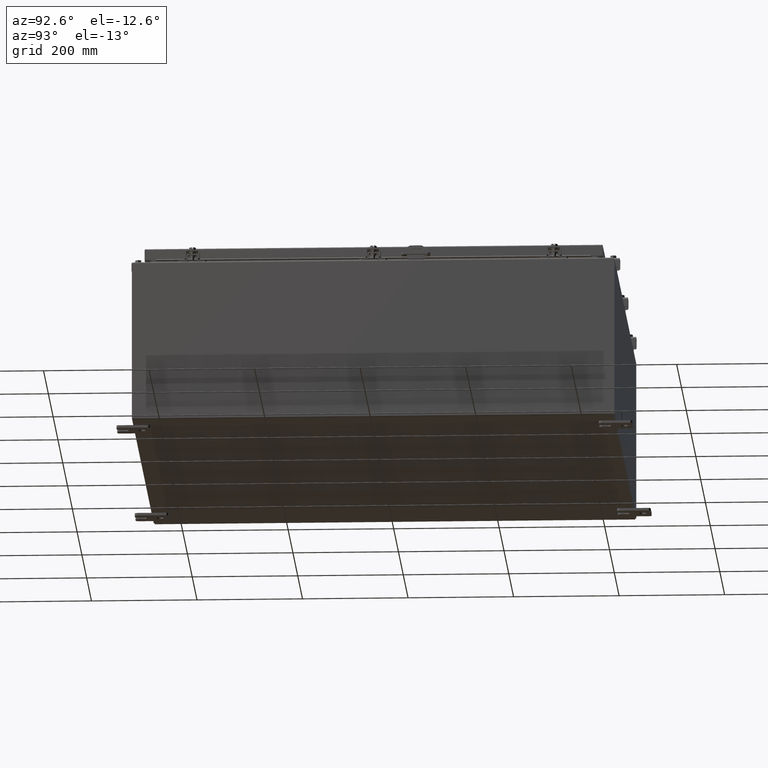
[diagram: clean part render]
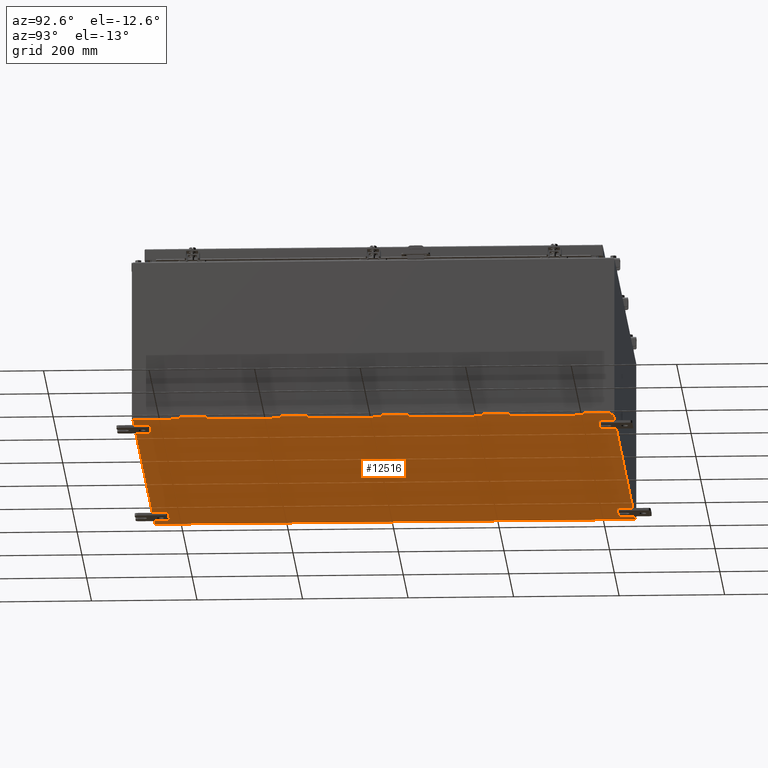
[diagram: same view with one face highlighted and labeled with its STEP entity id]
A machine part, auxiliary view. The second image highlights one B-rep face of the part: STEP entity #12516.
In plain terms, the highlighted planar face has unit normal (0, 0, -1).
Its self-contained STEP definition (entity closure, byte-faithful):
#723 = ORIENTED_EDGE ( 'NONE', *, *, #33934, .T. ) ;
#3571 = CARTESIAN_POINT ( 'NONE',  ( 17.91229999999999800, 17.92530000000000000, -0.07470000000000251400 ) ) ;
#5462 = EDGE_CURVE ( 'NONE', #15052, #46154, #5648, .T. ) ;
#5551 = FACE_OUTER_BOUND ( 'NONE', #27305, .T. ) ;
#5648 = LINE ( 'NONE', #37745, #13996 ) ;
#8200 = DIRECTION ( 'NONE',  ( -1.000000000000000000, -0.0000000000000000000, -0.0000000000000000000 ) ) ;
#8446 = VERTEX_POINT ( 'NONE', #3571 ) ;
#9478 = CARTESIAN_POINT ( 'NONE',  ( -17.91229999999999800, 17.92530000000000000, -0.07469999999999998900 ) ) ;
#10103 = EDGE_CURVE ( 'NONE', #8446, #32768, #34337, .T. ) ;
#12295 = ORIENTED_EDGE ( 'NONE', *, *, #31071, .T. ) ;
#12516 = ADVANCED_FACE ( 'NONE', ( #5551 ), #39843, .T. ) ;
#13996 = VECTOR ( 'NONE', #44903, 39.37007874015748100 ) ;
#14752 = CARTESIAN_POINT ( 'NONE',  ( 0.0000000000000000000, 0.0000000000000000000, -0.07469999999999998900 ) ) ;
#15052 = VERTEX_POINT ( 'NONE', #40501 ) ;
#16707 = CARTESIAN_POINT ( 'NONE',  ( 17.91229999999999800, 17.92530000000000000, -0.07470000000000251400 ) ) ;
#17434 = VECTOR ( 'NONE', #31029, 39.37007874015748100 ) ;
#20224 = DIRECTION ( 'NONE',  ( -0.0000000000000000000, 1.000000000000000000, -0.0000000000000000000 ) ) ;
#20538 = CARTESIAN_POINT ( 'NONE',  ( 17.91229999999999800, -17.92530000000000000, -0.07469999999999998900 ) ) ;
#21962 = DIRECTION ( 'NONE',  ( -1.000000000000000000, 0.0000000000000000000, -0.0000000000000000000 ) ) ;
#27305 = EDGE_LOOP ( 'NONE', ( #31389, #12295, #39090, #723 ) ) ;
#31029 = DIRECTION ( 'NONE',  ( -0.0000000000000000000, -1.000000000000000000, 8.208677865577646300E-017 ) ) ;
#31071 = EDGE_CURVE ( 'NONE', #15052, #32768, #44063, .T. ) ;
#31389 = ORIENTED_EDGE ( 'NONE', *, *, #5462, .F. ) ;
#32768 = VERTEX_POINT ( 'NONE', #9478 ) ;
#33252 = CARTESIAN_POINT ( 'NONE',  ( -18.00000000000000000, 17.92530000000000000, -0.07469999999999998900 ) ) ;
#33934 = EDGE_CURVE ( 'NONE', #8446, #46154, #36547, .T. ) ;
#34258 = AXIS2_PLACEMENT_3D ( 'NONE', #14752, #43417, #21962 ) ;
#34337 = LINE ( 'NONE', #33252, #43850 ) ;
#35656 = VECTOR ( 'NONE', #20224, 39.37007874015748100 ) ;
#36547 = LINE ( 'NONE', #16707, #17434 ) ;
#37745 = CARTESIAN_POINT ( 'NONE',  ( -18.00000000000000000, -17.92530000000000000, -0.07469999999999998900 ) ) ;
#39090 = ORIENTED_EDGE ( 'NONE', *, *, #10103, .F. ) ;
#39843 = PLANE ( 'NONE',  #34258 ) ;
#40501 = CARTESIAN_POINT ( 'NONE',  ( -17.91229999999999800, -17.92530000000000000, -0.07469999999999996100 ) ) ;
#43417 = DIRECTION ( 'NONE',  ( 0.0000000000000000000, 0.0000000000000000000, -1.000000000000000000 ) ) ;
#43850 = VECTOR ( 'NONE', #8200, 39.37007874015748100 ) ;
#44063 = LINE ( 'NONE', #45291, #35656 ) ;
#44903 = DIRECTION ( 'NONE',  ( 1.000000000000000000, 0.0000000000000000000, 0.0000000000000000000 ) ) ;
#45291 = CARTESIAN_POINT ( 'NONE',  ( -17.91229999999999800, -17.92530000000000000, -0.07469999999999996100 ) ) ;
#46154 = VERTEX_POINT ( 'NONE', #20538 ) ;